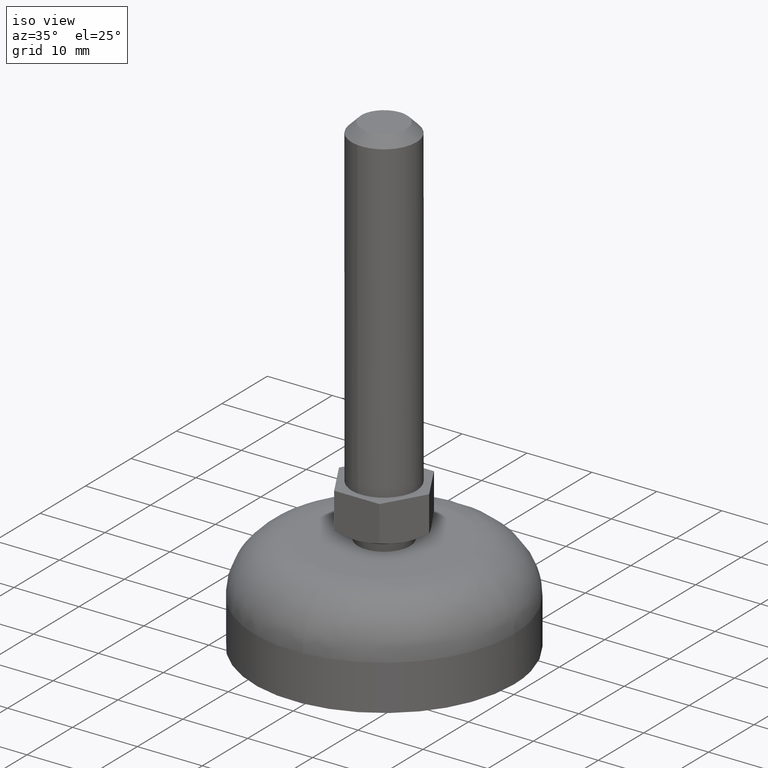
[diagram: clean part render]
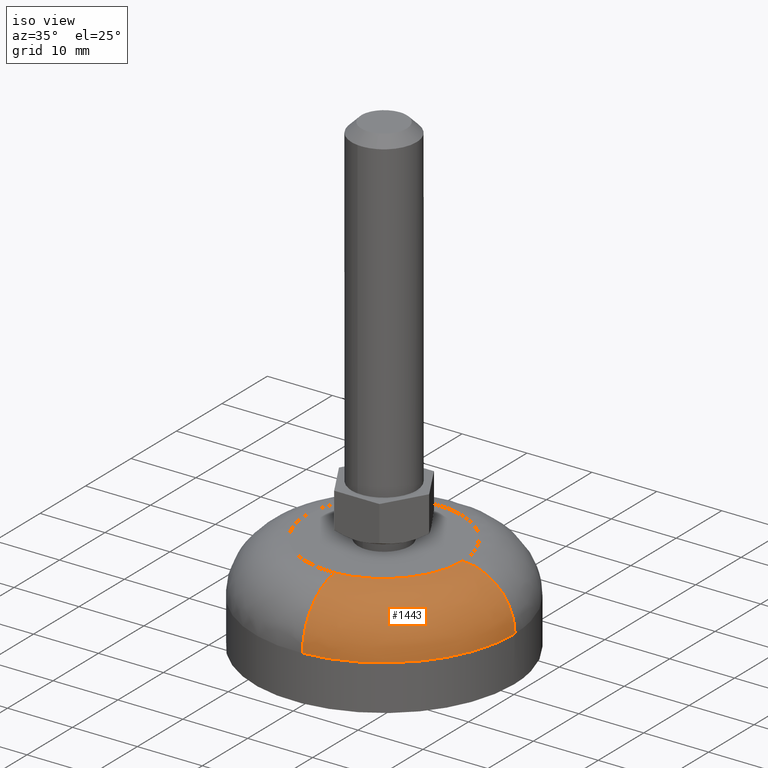
[diagram: same view with one face highlighted and labeled with its STEP entity id]
A machine part, iso view. The second image highlights one B-rep face of the part: STEP entity #1443.
In plain terms, the highlighted face is a freeform B-spline surface patch.
Its self-contained STEP definition (entity closure, byte-faithful):
#728=CARTESIAN_POINT('',(19.998420884076250,0.251320797672124,7.000000000018707));
#729=VERTEX_POINT('',#728);
#743=CARTESIAN_POINT('',(20.0,0.0,7.0));
#744=VERTEX_POINT('',#743);
#745=CARTESIAN_POINT('',(19.998420884076257,0.251320797672123,7.000000000018707));
#746=CARTESIAN_POINT('',(20.000000000000004,0.125665359842874,7.0));
#747=CARTESIAN_POINT('',(20.0,0.0,7.0));
#755=(BOUNDED_CURVE()B_SPLINE_CURVE(2,(#745,#746,#747),.UNSPECIFIED.,.F.,.U.)B_SPLINE_CURVE_WITH_KNOTS((3,3),(0.497784295921639,0.500000000000000),.UNSPECIFIED.)CURVE()GEOMETRIC_REPRESENTATION_ITEM()RATIONAL_B_SPLINE_CURVE((0.994854295643807,0.997404141202203,1.0))REPRESENTATION_ITEM(''));
#756=EDGE_CURVE('',#729,#744,#755,.T.);
#758=CARTESIAN_POINT('',(1.394665031530033,-19.951313476807169,7.000000000018318));
#759=VERTEX_POINT('',#758);
#760=CARTESIAN_POINT('',(20.0,0.0,7.0));
#761=CARTESIAN_POINT('',(19.999999999999993,-18.650736945292717,6.999999999999999));
#762=CARTESIAN_POINT('',(1.394665031530032,-19.951313476807165,7.000000000018318));
#770=(BOUNDED_CURVE()B_SPLINE_CURVE(2,(#760,#761,#762),.UNSPECIFIED.,.F.,.U.)B_SPLINE_CURVE_WITH_KNOTS((3,3),(0.500000000000000,0.737833686534770),.UNSPECIFIED.)CURVE()GEOMETRIC_REPRESENTATION_ITEM()RATIONAL_B_SPLINE_CURVE((1.0,0.721360504034247,0.972879876386295))REPRESENTATION_ITEM(''));
#771=EDGE_CURVE('',#744,#759,#770,.T.);
#1323=CARTESIAN_POINT('',(0.836799049755325,-11.970788112341200,15.0));
#1324=VERTEX_POINT('',#1323);
#1342=CARTESIAN_POINT('',(11.999052531572310,0.150792478983244,15.0));
#1343=VERTEX_POINT('',#1342);
#1359=CARTESIAN_POINT('',(11.999052531572305,0.150792478983244,14.999999999999993));
#1360=CARTESIAN_POINT('',(19.998420884038907,0.251320797666568,14.999999997737520));
#1361=CARTESIAN_POINT('',(19.998420884076257,0.251320797672124,7.000000000018706));
#1369=(BOUNDED_CURVE()B_SPLINE_CURVE(2,(#1359,#1360,#1361),.UNSPECIFIED.,.F.,.U.)B_SPLINE_CURVE_WITH_KNOTS((3,3),(-1.734750791364536,-0.265249208346459),.UNSPECIFIED.)CURVE()GEOMETRIC_REPRESENTATION_ITEM()RATIONAL_B_SPLINE_CURVE((0.889029723472298,0.628638946270237,0.889029723574719))REPRESENTATION_ITEM(''));
#1370=EDGE_CURVE('',#1343,#729,#1369,.T.);
#1376=CARTESIAN_POINT('',(0.836799049755325,-11.970788112341204,14.999999999999996));
#1377=CARTESIAN_POINT('',(1.394665031506272,-19.951313476772086,14.999999943313261));
#1378=CARTESIAN_POINT('',(1.394665031530033,-19.951313476807169,7.000000000018318));
#1386=(BOUNDED_CURVE()B_SPLINE_CURVE(2,(#1376,#1377,#1378),.UNSPECIFIED.,.F.,.U.)B_SPLINE_CURVE_WITH_KNOTS((3,3),(-1.734750784295542,-0.265249208346358),.UNSPECIFIED.)CURVE()GEOMETRIC_REPRESENTATION_ITEM()RATIONAL_B_SPLINE_CURVE((0.869031709324607,0.614498217809301,0.869031711873611))REPRESENTATION_ITEM(''));
#1387=EDGE_CURVE('',#1324,#759,#1386,.T.);
#1392=CARTESIAN_POINT('',(11.442798741390529,0.143802019364414,14.980634865450325));
#1393=CARTESIAN_POINT('',(11.578598673041993,-10.662244334160011,14.980634865450320));
#1394=CARTESIAN_POINT('',(0.798006570604673,-11.415844584173954,14.980634865450327));
#1395=CARTESIAN_POINT('',(20.618669307503762,0.259115479528725,15.620298119112496));
#1396=CARTESIAN_POINT('',(20.863365901928237,-19.212195807189001,15.620298119112492));
#1397=CARTESIAN_POINT('',(1.437920386119927,-20.570100870124804,15.620298119112492));
#1398=CARTESIAN_POINT('',(19.979057324951491,0.251077455197493,6.443702954227859));
#1399=CARTESIAN_POINT('',(20.216163183448771,-18.616214055595258,6.443702954227858));
#1400=CARTESIAN_POINT('',(1.393314640947819,-19.931995529638449,6.443702954227858));
#1408=(BOUNDED_SURFACE()B_SPLINE_SURFACE(2,2,((#1392,#1395,#1398),(#1393,#1396,#1399),(#1394,#1397,#1400)),.UNSPECIFIED.,.F.,.F.,.U.)B_SPLINE_SURFACE_WITH_KNOTS((3,3),(3,3),(0.0,31.772077904052619),(0.0,14.578992517874040),.UNSPECIFIED.)GEOMETRIC_REPRESENTATION_ITEM()RATIONAL_B_SPLINE_SURFACE(((0.916342144029433,0.601326543189608,0.916342109178844),(0.658687359934200,0.432247055068548,0.658687334882812),(0.895729761301814,0.587800184139924,0.895729727235161)))REPRESENTATION_ITEM('')SURFACE());
#1409=CARTESIAN_POINT('',(12.0,0.0,15.0));
#1410=VERTEX_POINT('',#1409);
#1411=CARTESIAN_POINT('',(12.0,0.0,15.0));
#1412=CARTESIAN_POINT('',(12.0,-11.190442113084996,15.0));
#1413=CARTESIAN_POINT('',(0.836799049755325,-11.970788112341204,15.0));
#1421=(BOUNDED_CURVE()B_SPLINE_CURVE(2,(#1411,#1412,#1413),.UNSPECIFIED.,.F.,.U.)B_SPLINE_CURVE_WITH_KNOTS((3,3),(0.500000000000000,0.737833685705491),.UNSPECIFIED.)CURVE()GEOMETRIC_REPRESENTATION_ITEM()RATIONAL_B_SPLINE_CURVE((1.0,0.721360505005807,0.972879874632299))REPRESENTATION_ITEM(''));
#1422=EDGE_CURVE('',#1410,#1324,#1421,.T.);
#1423=ORIENTED_EDGE('',*,*,#1422,.T.);
#1424=ORIENTED_EDGE('',*,*,#1387,.T.);
#1425=ORIENTED_EDGE('',*,*,#771,.F.);
#1426=ORIENTED_EDGE('',*,*,#756,.F.);
#1427=ORIENTED_EDGE('',*,*,#1370,.F.);
#1428=CARTESIAN_POINT('',(11.999052531572310,0.150792478983245,15.0));
#1429=CARTESIAN_POINT('',(11.999999999999998,0.075399216271522,15.000000000000004));
#1430=CARTESIAN_POINT('',(12.0,0.0,15.0));
#1438=(BOUNDED_CURVE()B_SPLINE_CURVE(2,(#1428,#1429,#1430),.UNSPECIFIED.,.F.,.U.)B_SPLINE_CURVE_WITH_KNOTS((3,3),(0.497784295910917,0.500000000000000),.UNSPECIFIED.)CURVE()GEOMETRIC_REPRESENTATION_ITEM()RATIONAL_B_SPLINE_CURVE((0.994854295619130,0.997404141189642,1.0))REPRESENTATION_ITEM(''));
#1439=EDGE_CURVE('',#1343,#1410,#1438,.T.);
#1440=ORIENTED_EDGE('',*,*,#1439,.T.);
#1441=EDGE_LOOP('',(#1423,#1424,#1425,#1426,#1427,#1440));
#1442=FACE_OUTER_BOUND('',#1441,.T.);
#1443=ADVANCED_FACE('',(#1442),#1408,.T.);